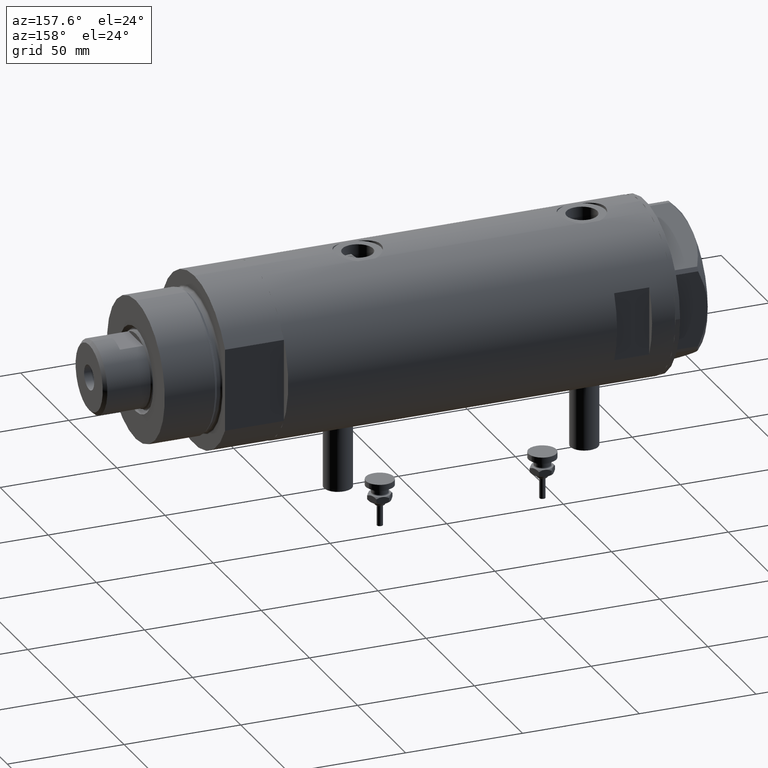
[diagram: clean part render]
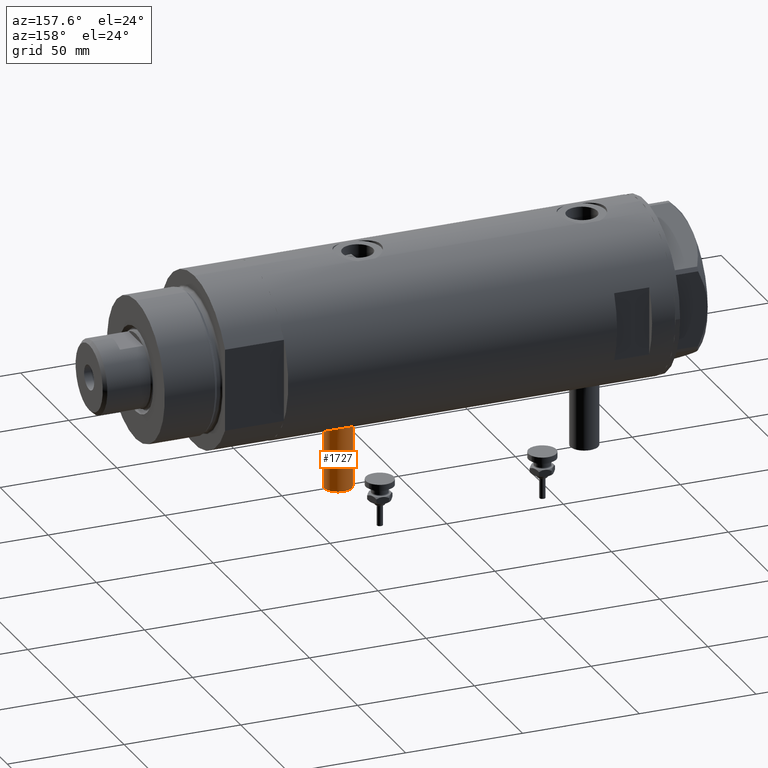
[diagram: same view with one face highlighted and labeled with its STEP entity id]
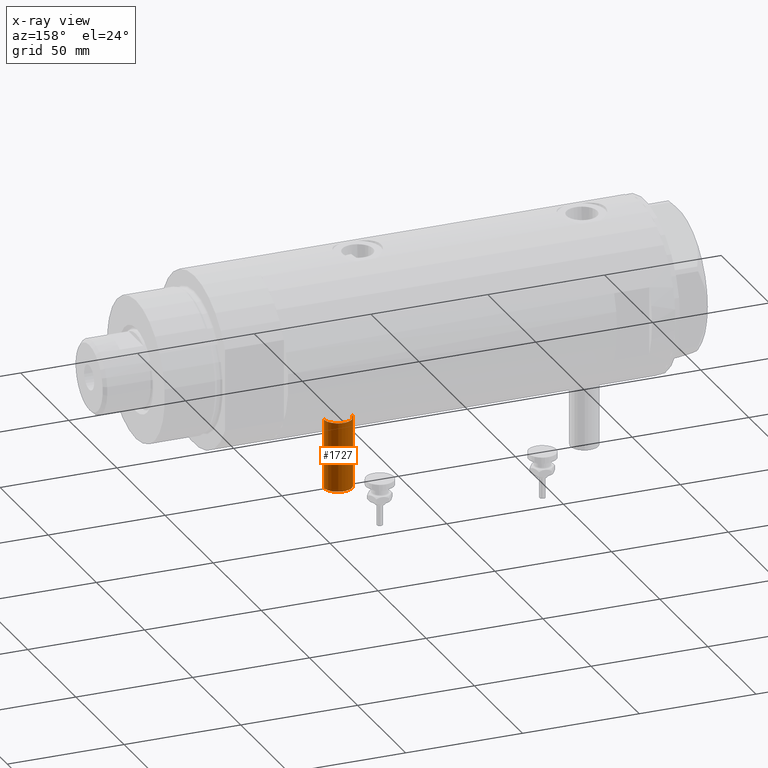
[diagram: x-ray of the same camera — body ghosted, the highlighted face saturated]
A machine part, auxiliary view. The second image highlights one B-rep face of the part: STEP entity #1727.
The next image is the same camera in x-ray: the body ghosted, the highlighted face saturated — about 0% of this face is hidden behind the body in this view.
In plain terms, the highlighted cylindrical surface (edge-blend (fillet) strip) has radius 6 mm, axis along (0, 0, 1).
Its self-contained STEP definition (entity closure, byte-faithful):
#389 = FACE_OUTER_BOUND ( 'NONE', #5933, .T. ) ;
#785 = CARTESIAN_POINT ( 'NONE',  ( -65.00000000000000000, 7.347880794884122694E-16, -40.59999999999999432 ) ) ;
#836 = EDGE_CURVE ( 'NONE', #5302, #3304, #3283, .T. ) ;
#876 = DIRECTION ( 'NONE',  ( 0.000000000000000000, 0.000000000000000000, -1.000000000000000000 ) ) ;
#912 = CARTESIAN_POINT ( 'NONE',  ( -65.00000000000000000, 0.000000000000000000, -46.60000000000000142 ) ) ;
#921 = EDGE_CURVE ( 'NONE', #2125, #3981, #4812, .T. ) ;
#940 = ORIENTED_EDGE ( 'NONE', *, *, #836, .F. ) ;
#1087 = DIRECTION ( 'NONE',  ( -1.000000000000000000, 0.000000000000000000, 0.000000000000000000 ) ) ;
#1250 = CIRCLE ( 'NONE', #4210, 6.000000000000005329 ) ;
#1444 = VECTOR ( 'NONE', #3518, 1000.000000000000000 ) ;
#1662 = EDGE_CURVE ( 'NONE', #3981, #3304, #1250, .T. ) ;
#1727 = ADVANCED_FACE ( 'NONE', ( #389 ), #4062, .T. ) ;
#1892 = CARTESIAN_POINT ( 'NONE',  ( -65.00000000000000000, 0.000000000000000000, -52.60000000000000853 ) ) ;
#2101 = CARTESIAN_POINT ( 'NONE',  ( -65.00000000000000000, 7.347880794884119736E-16, -40.59999999999999432 ) ) ;
#2125 = VERTEX_POINT ( 'NONE', #2101 ) ;
#2677 = AXIS2_PLACEMENT_3D ( 'NONE', #3023, #4858, #5344 ) ;
#2904 = DIRECTION ( 'NONE',  ( 0.000000000000000000, 0.000000000000000000, 1.000000000000000000 ) ) ;
#2929 = CARTESIAN_POINT ( 'NONE',  ( -35.29999999999999716, 7.347880794884119736E-16, -40.59999999999999432 ) ) ;
#3023 = CARTESIAN_POINT ( 'NONE',  ( -65.00000000000000000, 0.000000000000000000, -46.60000000000000142 ) ) ;
#3283 = LINE ( 'NONE', #1892, #5846 ) ;
#3304 = VERTEX_POINT ( 'NONE', #4956 ) ;
#3337 = ORIENTED_EDGE ( 'NONE', *, *, #5438, .F. ) ;
#3518 = DIRECTION ( 'NONE',  ( 1.000000000000000000, -0.000000000000000000, -0.000000000000000000 ) ) ;
#3537 = CIRCLE ( 'NONE', #2677, 6.000000000000005329 ) ;
#3735 = DIRECTION ( 'NONE',  ( 1.000000000000000000, -0.000000000000000000, -0.000000000000000000 ) ) ;
#3981 = VERTEX_POINT ( 'NONE', #2929 ) ;
#4062 = CYLINDRICAL_SURFACE ( 'NONE', #4796, 6.000000000000005329 ) ;
#4082 = ORIENTED_EDGE ( 'NONE', *, *, #921, .T. ) ;
#4107 = ORIENTED_EDGE ( 'NONE', *, *, #1662, .T. ) ;
#4210 = AXIS2_PLACEMENT_3D ( 'NONE', #5187, #1087, #2904 ) ;
#4796 = AXIS2_PLACEMENT_3D ( 'NONE', #912, #4893, #876 ) ;
#4812 = LINE ( 'NONE', #785, #1444 ) ;
#4858 = DIRECTION ( 'NONE',  ( -1.000000000000000000, 0.000000000000000000, 0.000000000000000000 ) ) ;
#4893 = DIRECTION ( 'NONE',  ( 1.000000000000000000, -0.000000000000000000, -0.000000000000000000 ) ) ;
#4956 = CARTESIAN_POINT ( 'NONE',  ( -35.29999999999999716, 0.000000000000000000, -52.60000000000000853 ) ) ;
#5187 = CARTESIAN_POINT ( 'NONE',  ( -35.29999999999999716, 0.000000000000000000, -46.60000000000000142 ) ) ;
#5248 = CARTESIAN_POINT ( 'NONE',  ( -65.00000000000000000, 0.000000000000000000, -52.60000000000000853 ) ) ;
#5302 = VERTEX_POINT ( 'NONE', #5248 ) ;
#5344 = DIRECTION ( 'NONE',  ( 0.000000000000000000, 0.000000000000000000, 1.000000000000000000 ) ) ;
#5438 = EDGE_CURVE ( 'NONE', #2125, #5302, #3537, .T. ) ;
#5846 = VECTOR ( 'NONE', #3735, 1000.000000000000000 ) ;
#5933 = EDGE_LOOP ( 'NONE', ( #3337, #4082, #4107, #940 ) ) ;